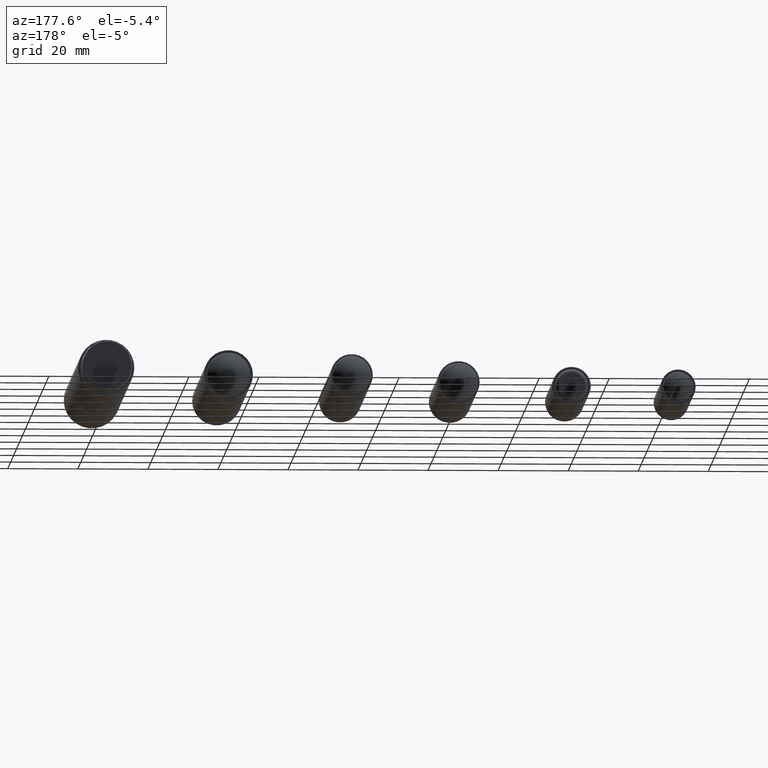
[diagram: clean part render]
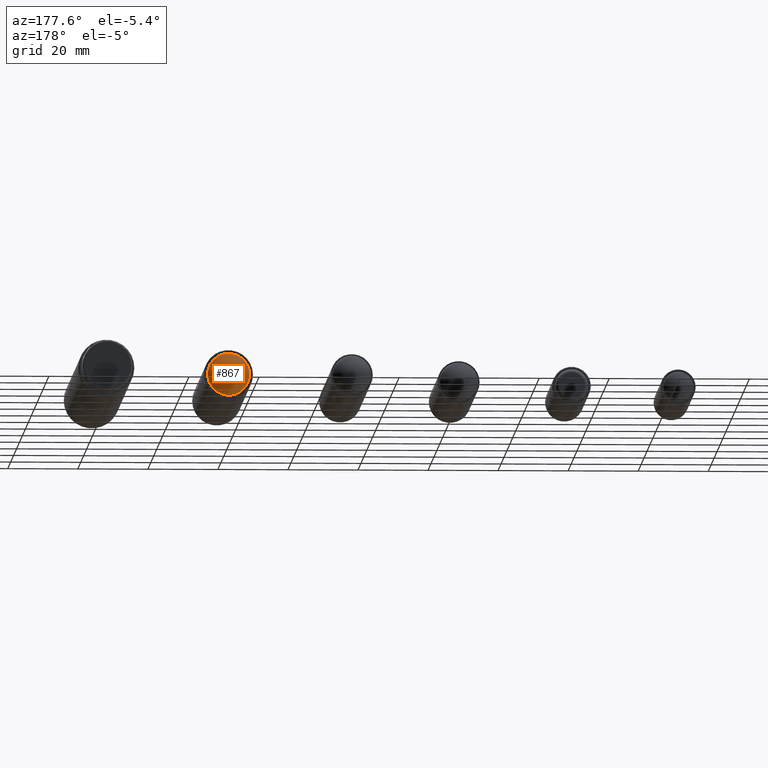
[diagram: same view with one face highlighted and labeled with its STEP entity id]
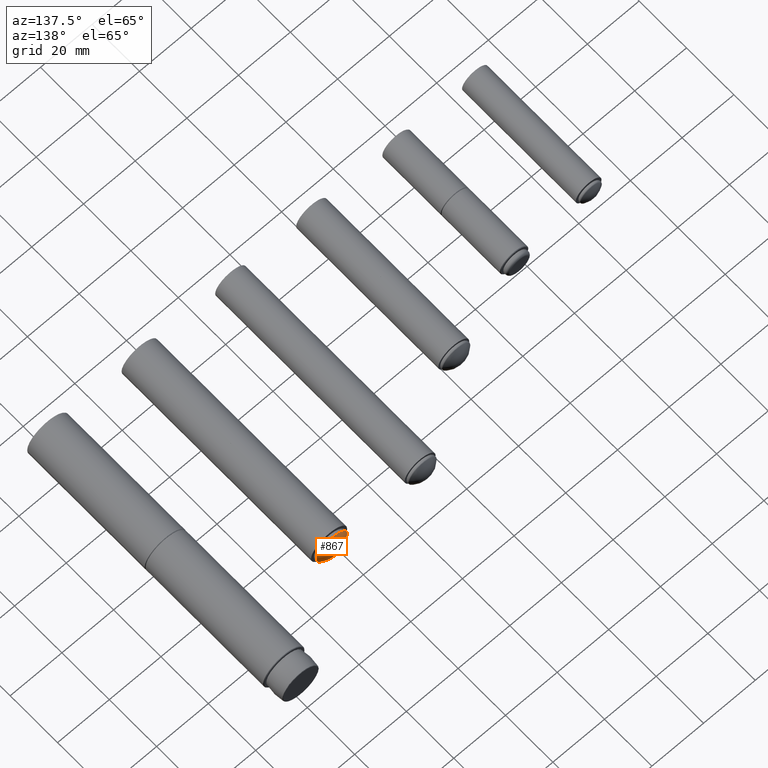
[diagram: same view with one face highlighted and labeled with its STEP entity id]
A machine part, auxiliary view. The second image highlights one B-rep face of the part: STEP entity #867.
A second angle (auxiliary view) of the same face is appended — the face is thin or edge-on in the first view.
In plain terms, the highlighted spherical surface has radius 8.8145 mm.
Its self-contained STEP definition (entity closure, byte-faithful):
#116=SPHERICAL_SURFACE('',#1026,8.81449999999999);
#314=FACE_OUTER_BOUND('',#430,.T.);
#430=EDGE_LOOP('',(#756));
#507=CIRCLE('',#1025,5.9897678753984);
#573=VERTEX_POINT('',#1609);
#639=EDGE_CURVE('',#573,#573,#507,.T.);
#756=ORIENTED_EDGE('',*,*,#639,.F.);
#867=ADVANCED_FACE('',(#314),#116,.T.);
#1025=AXIS2_PLACEMENT_3D('',#1610,#1333,#1334);
#1026=AXIS2_PLACEMENT_3D('',#1611,#1335,#1336);
#1333=DIRECTION('center_axis',(4.10526254053798E-16,-1.,0.));
#1334=DIRECTION('ref_axis',(1.,4.11820532508315E-16,0.));
#1335=DIRECTION('center_axis',(6.12323399573676E-17,0.,1.));
#1336=DIRECTION('ref_axis',(1.,0.,0.));
#1609=CARTESIAN_POINT('',(-5.9897678753984,1.15219088861107,-7.3353500562423E-16));
#1610=CARTESIAN_POINT('Origin',(-1.44501449694128E-16,1.15219088861107,
0.));
#1611=CARTESIAN_POINT('Origin',(-3.28093726651823E-15,-5.31449999999998,
0.));